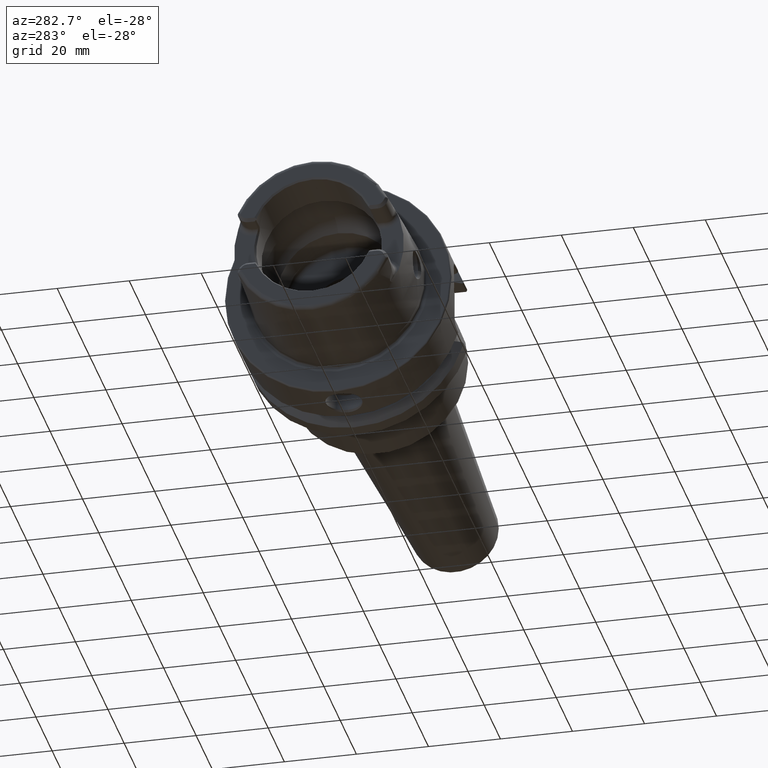
[diagram: clean part render]
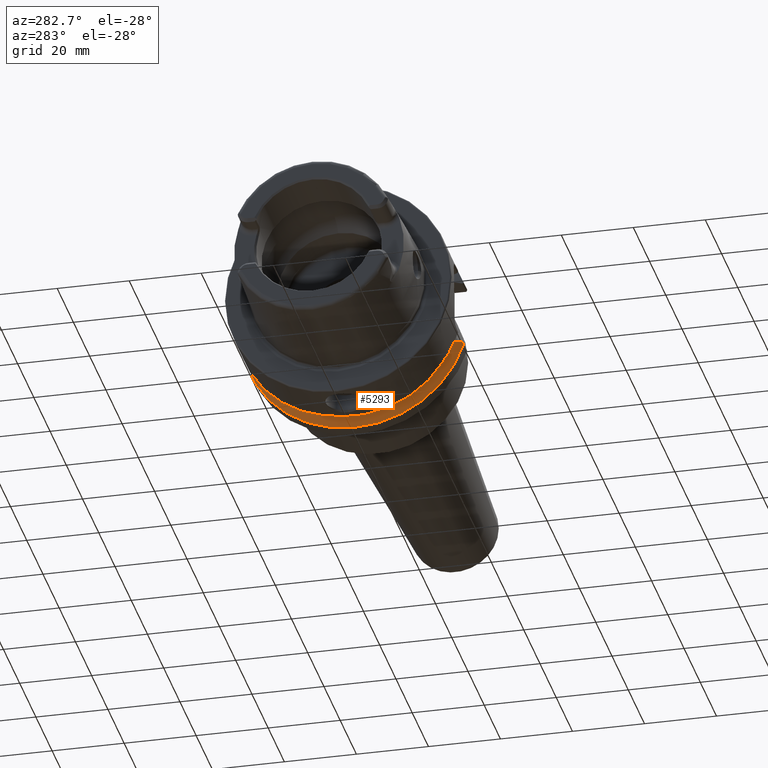
[diagram: same view with one face highlighted and labeled with its STEP entity id]
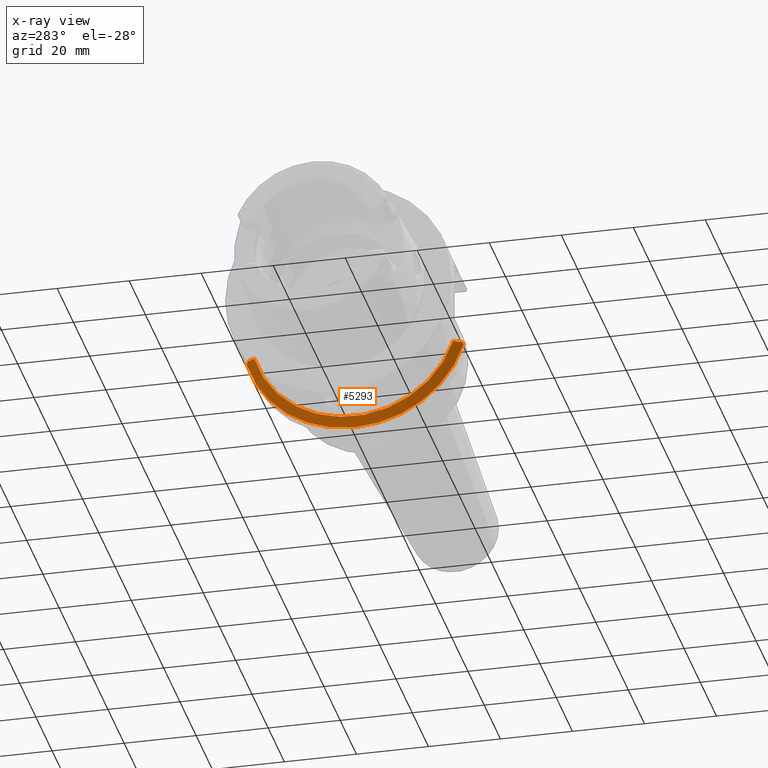
[diagram: x-ray of the same camera — body ghosted, the highlighted face saturated]
A machine part, auxiliary view. The second image highlights one B-rep face of the part: STEP entity #5293.
The next image is the same camera in x-ray: the body ghosted, the highlighted face saturated — about 2% of this face is hidden behind the body in this view.
In plain terms, the highlighted conical surface has half-angle 60 deg.
Its self-contained STEP definition (entity closure, byte-faithful):
#2053=CARTESIAN_POINT('',(2.137749905409E1,3.030257052423E1,-8.602570524226E0));
#2054=CARTESIAN_POINT('',(2.132921046999E1,3.023485181706E1,-8.534851817061E0));
#2055=CARTESIAN_POINT('',(2.123311736136E1,3.009992541679E1,-8.399925416791E0));
#2056=CARTESIAN_POINT('',(2.109043172139E1,2.989907088202E1,-8.199070882020E0));
#2057=CARTESIAN_POINT('',(2.099627445276E1,2.976618689262E1,-8.066186892616E0));
#2058=CARTESIAN_POINT('',(2.094943773112E1,2.97E1,-8.E0));
#2060=CARTESIAN_POINT('',(1.9875E1,2.776816547996E1,-8.E0));
#2061=CARTESIAN_POINT('',(1.999165415311E1,2.797843452791E1,-8.E0));
#2062=CARTESIAN_POINT('',(2.022678408776E1,2.840189003059E1,-8.E0));
#2063=CARTESIAN_POINT('',(2.058492130902E1,2.904580805273E1,-8.E0));
#2064=CARTESIAN_POINT('',(2.082732680308E1,2.948095924086E1,-8.E0));
#2065=CARTESIAN_POINT('',(2.094943773112E1,2.97E1,-8.E0));
#2067=CARTESIAN_POINT('',(1.9875E1,0.E0,0.E0));
#2068=DIRECTION('',(-1.E0,0.E0,0.E0));
#2069=DIRECTION('',(0.E0,9.609161313143E-1,-2.768396441624E-1));
#2070=AXIS2_PLACEMENT_3D('',#2067,#2068,#2069);
#2072=CARTESIAN_POINT('',(2.110827564058E1,-2.97E1,-9.E0));
#2073=CARTESIAN_POINT('',(2.096740886767E1,-2.944505518705E1,-9.E0));
#2074=CARTESIAN_POINT('',(2.068822774339E1,-2.893923282223E1,-9.E0));
#2075=CARTESIAN_POINT('',(2.027716456988E1,-2.819275590811E1,-9.E0));
#2076=CARTESIAN_POINT('',(2.000820237647E1,-2.770314203488E1,-9.E0));
#2077=CARTESIAN_POINT('',(1.9875E1,-2.746035349595E1,-9.E0));
#2079=CARTESIAN_POINT('',(2.110827564058E1,-2.97E1,-9.E0));
#2080=CARTESIAN_POINT('',(2.115274337122E1,-2.976176295487E1,
-9.061762954871E0));
#2081=CARTESIAN_POINT('',(2.124208175331E1,-2.988571693019E1,
-9.185716930188E0));
#2082=CARTESIAN_POINT('',(2.133222573231E1,-3.001052712454E1,
-9.310527124541E0));
#2083=CARTESIAN_POINT('',(2.137749905409E1,-3.007314630073E1,
-9.373146300730E0));
#2085=CARTESIAN_POINT('',(2.137749905409E1,0.E0,0.E0));
#2086=DIRECTION('',(1.E0,0.E0,0.E0));
#2087=DIRECTION('',(0.E0,-9.547030571660E-1,-2.975602000232E-1));
#2088=AXIS2_PLACEMENT_3D('',#2085,#2086,#2087);
#2583=CARTESIAN_POINT('',(1.9875E1,2.776816547996E1,-8.E0));
#2584=VERTEX_POINT('',#2583);
#2615=CARTESIAN_POINT('',(1.9875E1,-2.746035349595E1,-9.E0));
#2616=VERTEX_POINT('',#2615);
#2835=VERTEX_POINT('',#2079);
#2836=VERTEX_POINT('',#2083);
#2858=VERTEX_POINT('',#2053);
#2859=VERTEX_POINT('',#2058);
#5280=CARTESIAN_POINT('',(2.062624952704E1,0.E0,0.E0));
#5281=DIRECTION('',(1.E0,0.E0,0.E0));
#5282=DIRECTION('',(0.E0,0.E0,1.E0));
#5283=AXIS2_PLACEMENT_3D('',#5280,#5281,#5282);
#5284=CONICAL_SURFACE('',#5283,3.019879765E1,6.E1);
#5285=ORIENTED_EDGE('',*,*,#4787,.T.);
#5286=ORIENTED_EDGE('',*,*,#4821,.F.);
#5287=ORIENTED_EDGE('',*,*,#5170,.T.);
#5288=ORIENTED_EDGE('',*,*,#5219,.F.);
#5289=ORIENTED_EDGE('',*,*,#4528,.T.);
#5290=ORIENTED_EDGE('',*,*,#4419,.T.);
#5291=EDGE_LOOP('',(#5285,#5286,#5287,#5288,#5289,#5290));
#5292=FACE_OUTER_BOUND('',#5291,.F.);
#5293=ADVANCED_FACE('',(#5292),#5284,.T.);
#2059=B_SPLINE_CURVE_WITH_KNOTS('',3,(#2053,#2054,#2055,#2056,#2057,#2058),
.UNSPECIFIED.,.F.,.F.,(4,1,1,4),(0.E0,3.333333333333E-1,6.666666666667E-1,1.E0),
.UNSPECIFIED.);
#2066=B_SPLINE_CURVE_WITH_KNOTS('',3,(#2060,#2061,#2062,#2063,#2064,#2065),
.UNSPECIFIED.,.F.,.F.,(4,1,1,4),(0.E0,3.333333333333E-1,6.666666666667E-1,1.E0),
.UNSPECIFIED.);
#2071=CIRCLE('',#2070,2.88975953E1);
#2078=B_SPLINE_CURVE_WITH_KNOTS('',3,(#2072,#2073,#2074,#2075,#2076,#2077),
.UNSPECIFIED.,.F.,.F.,(4,1,1,4),(0.E0,3.333333333333E-1,6.666666666667E-1,1.E0),
.UNSPECIFIED.);
#2084=B_SPLINE_CURVE_WITH_KNOTS('',3,(#2079,#2080,#2081,#2082,#2083),
.UNSPECIFIED.,.F.,.F.,(4,1,4),(0.E0,5.E-1,1.E0),.UNSPECIFIED.);
#2089=CIRCLE('',#2088,3.15E1);
#4419=EDGE_CURVE('',#2836,#2858,#2089,.T.);
#4528=EDGE_CURVE('',#2835,#2836,#2084,.T.);
#4787=EDGE_CURVE('',#2858,#2859,#2059,.T.);
#4821=EDGE_CURVE('',#2584,#2859,#2066,.T.);
#5170=EDGE_CURVE('',#2584,#2616,#2071,.T.);
#5219=EDGE_CURVE('',#2835,#2616,#2078,.T.);